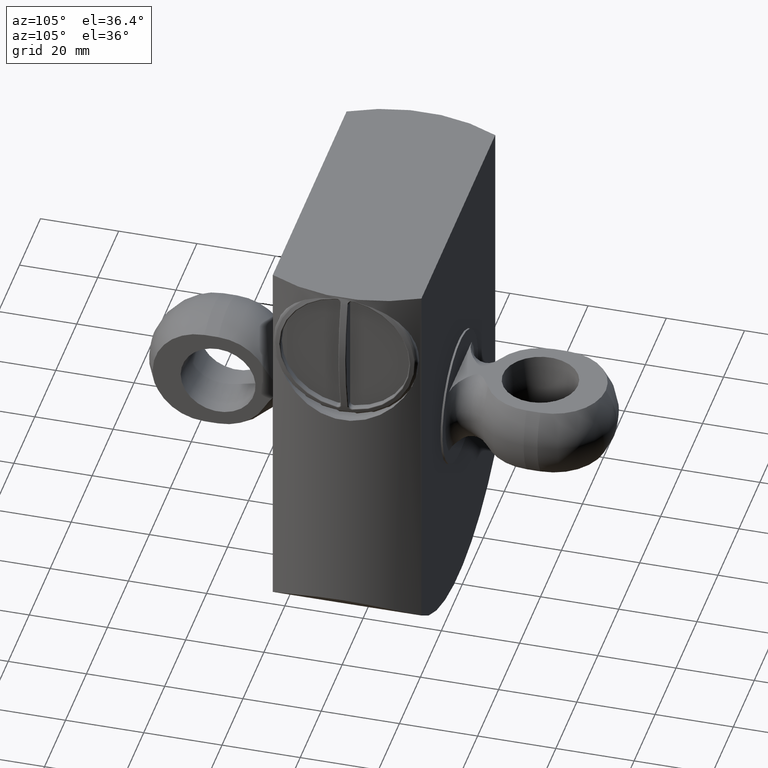
[diagram: clean part render]
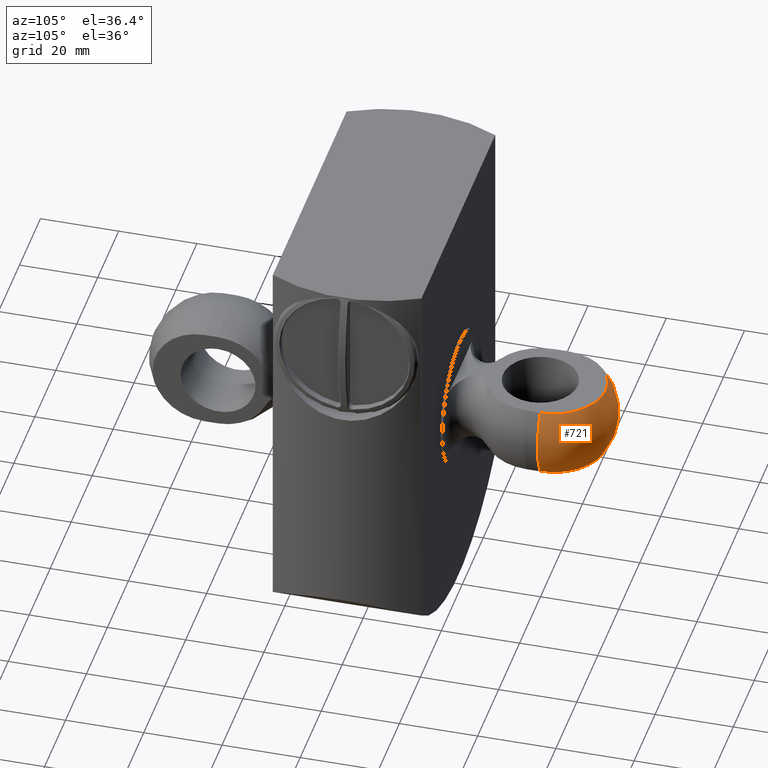
[diagram: same view with one face highlighted and labeled with its STEP entity id]
A machine part, auxiliary view. The second image highlights one B-rep face of the part: STEP entity #721.
In plain terms, the highlighted spherical surface has radius 16 mm.
Its self-contained STEP definition (entity closure, byte-faithful):
#30=SPHERICAL_SURFACE('',#857,16.);
#113=FACE_OUTER_BOUND('',#162,.T.);
#162=EDGE_LOOP('',(#651,#652,#653,#654,#655,#656,#657));
#275=CIRCLE('',#835,13.228756555323);
#278=CIRCLE('',#839,13.228756555323);
#279=CIRCLE('',#840,13.228756555323);
#287=CIRCLE('',#852,16.);
#290=CIRCLE('',#858,16.);
#291=CIRCLE('',#859,16.);
#344=VERTEX_POINT('',#1553);
#345=VERTEX_POINT('',#1555);
#352=VERTEX_POINT('',#1616);
#353=VERTEX_POINT('',#1618);
#354=VERTEX_POINT('',#1620);
#360=VERTEX_POINT('',#1671);
#437=EDGE_CURVE('',#345,#344,#275,.T.);
#445=EDGE_CURVE('',#353,#352,#278,.T.);
#446=EDGE_CURVE('',#354,#353,#279,.T.);
#457=EDGE_CURVE('',#345,#352,#287,.T.);
#460=EDGE_CURVE('',#354,#344,#290,.T.);
#461=EDGE_CURVE('',#360,#353,#291,.T.);
#651=ORIENTED_EDGE('',*,*,#437,.T.);
#652=ORIENTED_EDGE('',*,*,#460,.F.);
#653=ORIENTED_EDGE('',*,*,#446,.T.);
#654=ORIENTED_EDGE('',*,*,#461,.F.);
#655=ORIENTED_EDGE('',*,*,#461,.T.);
#656=ORIENTED_EDGE('',*,*,#445,.T.);
#657=ORIENTED_EDGE('',*,*,#457,.F.);
#721=ADVANCED_FACE('',(#113),#30,.T.);
#835=AXIS2_PLACEMENT_3D('',#1556,#1033,#1034);
#839=AXIS2_PLACEMENT_3D('',#1619,#1044,#1045);
#840=AXIS2_PLACEMENT_3D('',#1621,#1046,#1047);
#852=AXIS2_PLACEMENT_3D('',#1664,#1072,#1073);
#857=AXIS2_PLACEMENT_3D('',#1669,#1082,#1083);
#858=AXIS2_PLACEMENT_3D('',#1670,#1084,#1085);
#859=AXIS2_PLACEMENT_3D('',#1672,#1086,#1087);
#1033=DIRECTION('center_axis',(0.,0.,1.));
#1034=DIRECTION('ref_axis',(0.,1.,0.));
#1044=DIRECTION('center_axis',(0.,0.,-1.));
#1045=DIRECTION('ref_axis',(0.,-1.,0.));
#1046=DIRECTION('center_axis',(0.,0.,-1.));
#1047=DIRECTION('ref_axis',(0.,-1.,0.));
#1072=DIRECTION('center_axis',(1.11022302462516E-15,-1.,0.));
#1073=DIRECTION('ref_axis',(1.,1.11022302462516E-15,0.));
#1082=DIRECTION('center_axis',(0.,1.,-6.12323399573677E-17));
#1083=DIRECTION('ref_axis',(0.,0.,-1.));
#1084=DIRECTION('center_axis',(1.11022302462516E-15,-1.,0.));
#1085=DIRECTION('ref_axis',(1.,1.11022302462516E-15,0.));
#1086=DIRECTION('center_axis',(1.,0.,-1.22464679914735E-16));
#1087=DIRECTION('ref_axis',(1.22464679914735E-16,0.,1.));
#1553=CARTESIAN_POINT('',(-13.228756555323,43.4999999999999,-9.));
#1555=CARTESIAN_POINT('',(13.228756555323,43.5,-9.));
#1556=CARTESIAN_POINT('Origin',(-4.28626379701572E-16,43.5,-9.));
#1616=CARTESIAN_POINT('',(13.228756555323,43.5,9.));
#1618=CARTESIAN_POINT('',(6.73555739531046E-16,56.728756555323,9.));
#1619=CARTESIAN_POINT('Origin',(-4.28626379701572E-16,43.5,9.));
#1620=CARTESIAN_POINT('',(-13.228756555323,43.4999999999999,9.));
#1621=CARTESIAN_POINT('Origin',(-4.28626379701572E-16,43.5,9.));
#1664=CARTESIAN_POINT('Origin',(6.44884778230239E-15,43.5,0.));
#1669=CARTESIAN_POINT('Origin',(-4.28626379701572E-16,43.5,0.));
#1670=CARTESIAN_POINT('Origin',(6.44884778230239E-15,43.5,0.));
#1671=CARTESIAN_POINT('',(-4.28626379701572E-16,59.5,9.79717439317884E-16));
#1672=CARTESIAN_POINT('Origin',(-4.28626379701572E-16,43.5,0.));